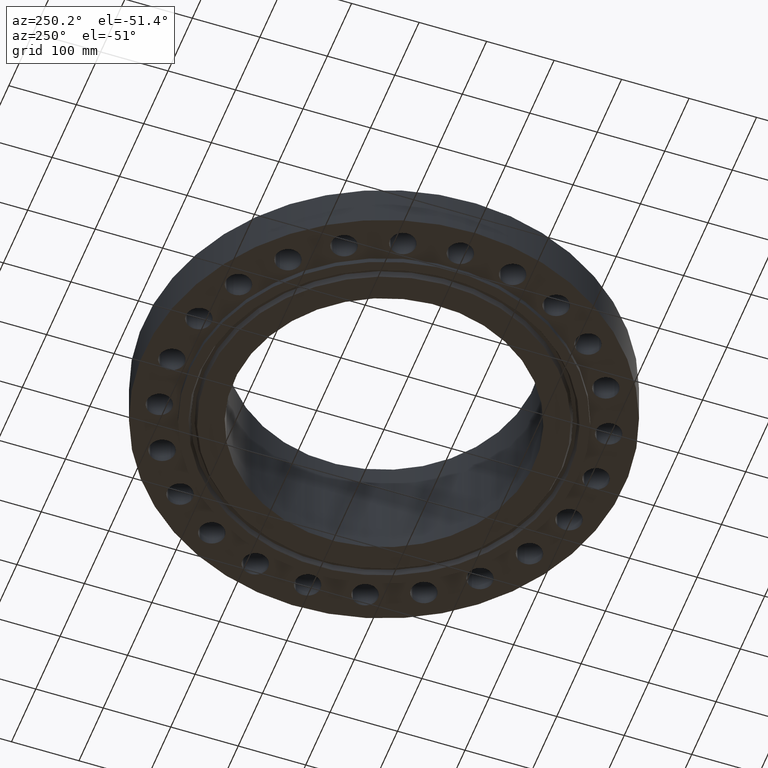
[diagram: clean part render]
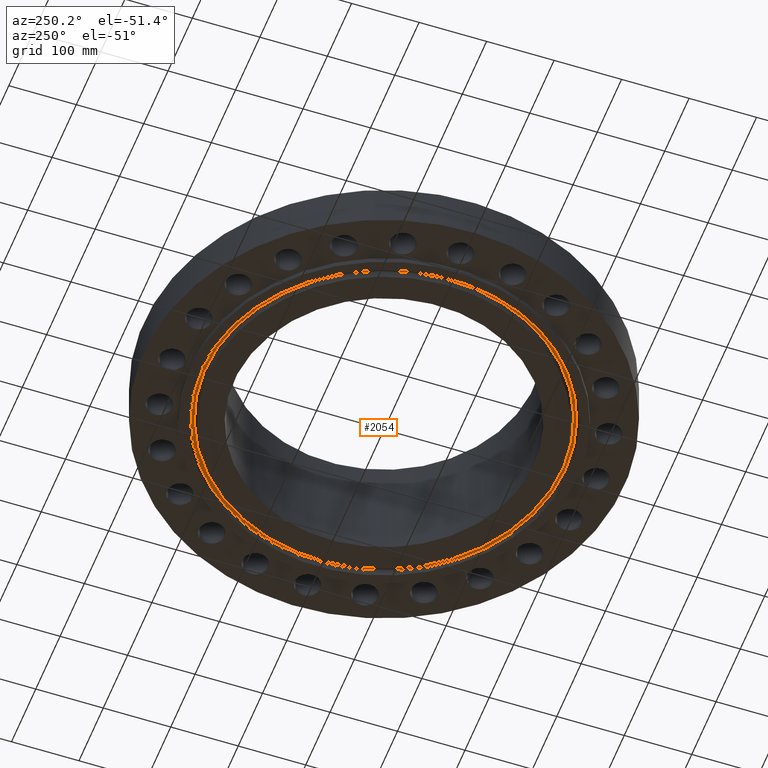
[diagram: same view with one face highlighted and labeled with its STEP entity id]
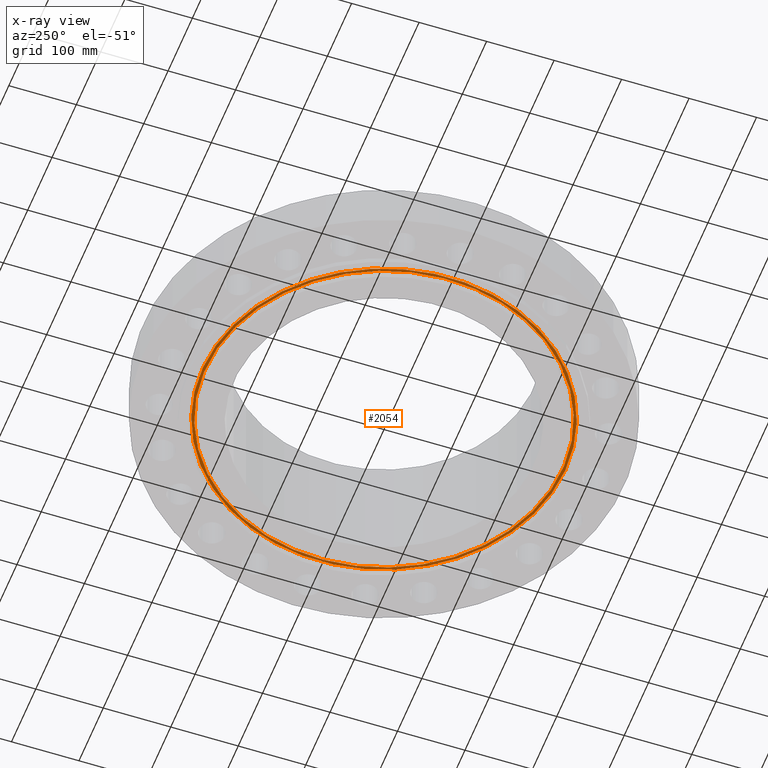
[diagram: x-ray of the same camera — body ghosted, the highlighted face saturated]
A machine part, auxiliary view. The second image highlights one B-rep face of the part: STEP entity #2054.
The next image is the same camera in x-ray: the body ghosted, the highlighted face saturated — about 0% of this face is hidden behind the body in this view.
In plain terms, the highlighted planar face has unit normal (0, 0, -1).
Its self-contained STEP definition (entity closure, byte-faithful):
#484=AXIS2_PLACEMENT_3D('Plane Axis2P3D',#481,#482,#483) ;
#1976=AXIS2_PLACEMENT_3D('Circle Axis2P3D',#1974,#1975,$) ;
#2022=AXIS2_PLACEMENT_3D('Circle Axis2P3D',#2020,#2021,$) ;
#2038=AXIS2_PLACEMENT_3D('Circle Axis2P3D',#2036,#2037,$) ;
#2047=AXIS2_PLACEMENT_3D('Circle Axis2P3D',#2045,#2046,$) ;
#481=CARTESIAN_POINT('Axis2P3D Location',(0.,11.3125,0.)) ;
#1971=CARTESIAN_POINT('Vertex',(-5.07285960098,9.28580721357,-3.54047499979E-016)) ;
#1974=CARTESIAN_POINT('Axis2P3D Location',(0.,0.,-3.54047499979E-016)) ;
#1978=CARTESIAN_POINT('Vertex',(5.07285960098,-9.28580721357,-3.54047499979E-016)) ;
#2020=CARTESIAN_POINT('Axis2P3D Location',(0.,0.,-3.54047499979E-016)) ;
#2036=CARTESIAN_POINT('Axis2P3D Location',(0.,0.,0.)) ;
#2040=CARTESIAN_POINT('Vertex',(4.99507670974,-9.1434265862,5.07030987624E-016)) ;
#2042=CARTESIAN_POINT('Vertex',(-4.99507670974,9.1434265862,5.07030987624E-016)) ;
#2045=CARTESIAN_POINT('Axis2P3D Location',(0.,0.,0.)) ;
#482=DIRECTION('Axis2P3D Direction',(0.,0.,-0.0393700787402)) ;
#483=DIRECTION('Axis2P3D XDirection',(0.0393700787402,0.,0.)) ;
#1975=DIRECTION('Axis2P3D Direction',(0.,0.,0.0393700787402)) ;
#2021=DIRECTION('Axis2P3D Direction',(0.,0.,0.0393700787402)) ;
#2037=DIRECTION('Axis2P3D Direction',(0.,0.,-0.0393700787402)) ;
#2046=DIRECTION('Axis2P3D Direction',(0.,0.,-0.0393700787402)) ;
#2033=ORIENTED_EDGE('',*,*,#1980,.F.) ;
#2034=ORIENTED_EDGE('',*,*,#2024,.F.) ;
#2051=ORIENTED_EDGE('',*,*,#2044,.T.) ;
#2052=ORIENTED_EDGE('',*,*,#2049,.T.) ;
#2053=FACE_BOUND('',#2050,.T.) ;
#2054=ADVANCED_FACE('PartBody',(#2035,#2053),#485,.T.) ;
#1977=CIRCLE('generated circle',#1976,10.5811209302) ;
#2023=CIRCLE('generated circle',#2022,10.5811209302) ;
#2039=CIRCLE('generated circle',#2038,10.4188790699) ;
#2048=CIRCLE('generated circle',#2047,10.4188790699) ;
#1980=EDGE_CURVE('',#1972,#1979,#1977,.T.) ;
#2024=EDGE_CURVE('',#1979,#1972,#2023,.T.) ;
#2044=EDGE_CURVE('',#2041,#2043,#2039,.F.) ;
#2049=EDGE_CURVE('',#2043,#2041,#2048,.F.) ;
#2032=EDGE_LOOP('',(#2033,#2034)) ;
#2050=EDGE_LOOP('',(#2051,#2052)) ;
#2035=FACE_OUTER_BOUND('',#2032,.T.) ;
#485=PLANE('',#484) ;
#1972=VERTEX_POINT('',#1971) ;
#1979=VERTEX_POINT('',#1978) ;
#2041=VERTEX_POINT('',#2040) ;
#2043=VERTEX_POINT('',#2042) ;